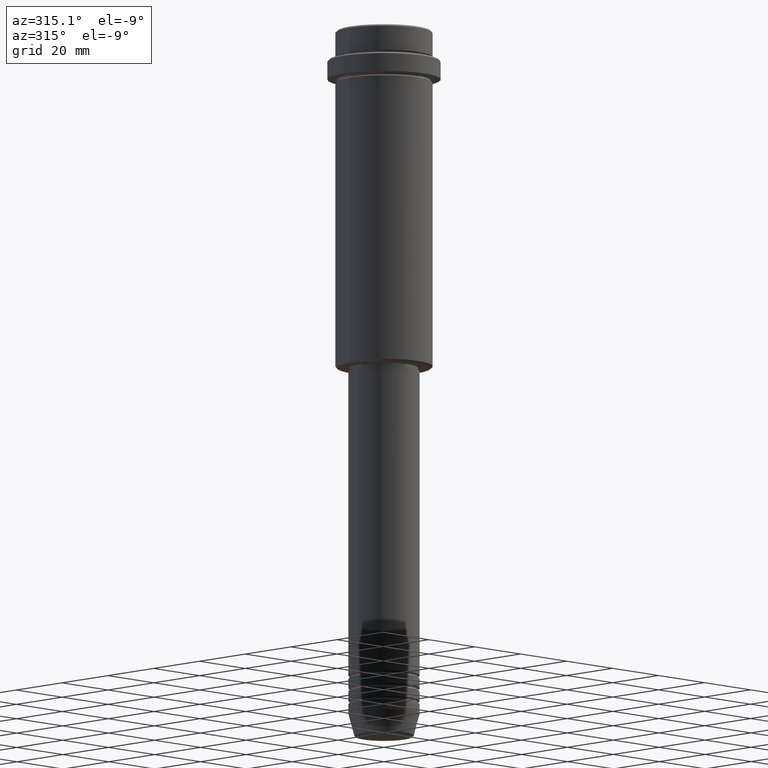
[diagram: clean part render]
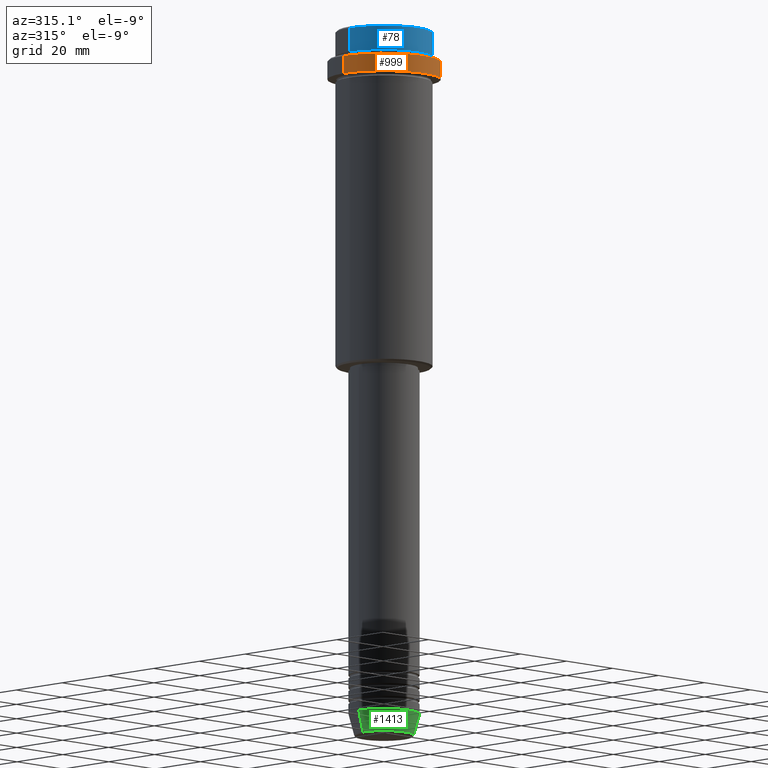
[diagram: same view with three faces highlighted in distinct colors, each labeled with its STEP entity id]
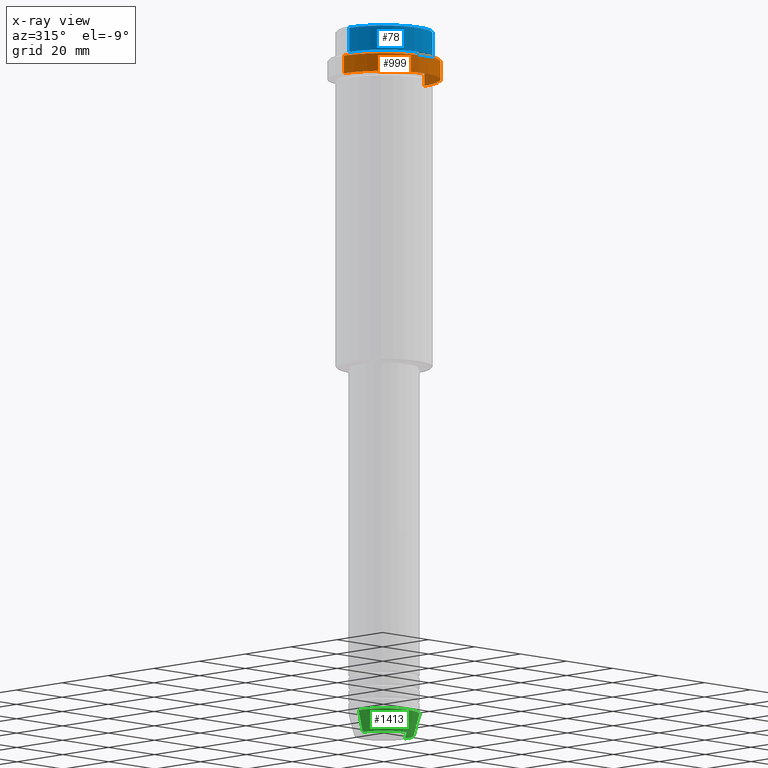
[diagram: x-ray of the same camera — body ghosted, the three highlighted faces saturated]
A machine part, auxiliary view with three faces highlighted in distinct colors.
The next image is the same camera in x-ray (body ghosted, the three faces saturated) — at least one of them is partly hidden behind the body in this view.
Their STEP definitions:

[orange] entity #999 — the highlighted cylindrical surface (partial cylindrical patch) has radius 17.5 mm, axis along (-0, -0, 1).
#37 = CIRCLE ( 'NONE', #843, 17.50000000000000000 ) ;
#68 = EDGE_CURVE ( 'NONE', #1298, #1323, #37, .T. ) ;
#102 = ORIENTED_EDGE ( 'NONE', *, *, #1174, .T. ) ;
#120 = CARTESIAN_POINT ( 'NONE',  ( -17.50000000000000000, 2.143131898507868248E-15, 0.000000000000000000 ) ) ;
#159 = ORIENTED_EDGE ( 'NONE', *, *, #528, .T. ) ;
#162 = CARTESIAN_POINT ( 'NONE',  ( 17.50000000000000000, 0.000000000000000000, 0.000000000000000000 ) ) ;
#215 = CARTESIAN_POINT ( 'NONE',  ( -17.50000000000000000, 2.143131898507868248E-15, -9.500000000000028422 ) ) ;
#227 = DIRECTION ( 'NONE',  ( 1.000000000000000000, 0.000000000000000000, 0.000000000000000000 ) ) ;
#259 = CARTESIAN_POINT ( 'NONE',  ( 0.000000000000000000, 0.000000000000000000, -15.00000000000000178 ) ) ;
#270 = DIRECTION ( 'NONE',  ( -0.000000000000000000, -0.000000000000000000, 1.000000000000000000 ) ) ;
#349 = DIRECTION ( 'NONE',  ( 1.000000000000000000, 0.000000000000000000, 0.000000000000000000 ) ) ;
#383 = VERTEX_POINT ( 'NONE', #841 ) ;
#439 = CYLINDRICAL_SURFACE ( 'NONE', #633, 17.50000000000000000 ) ;
#441 = DIRECTION ( 'NONE',  ( -0.000000000000000000, -0.000000000000000000, 1.000000000000000000 ) ) ;
#459 = EDGE_LOOP ( 'NONE', ( #556, #159, #102, #1191 ) ) ;
#471 = CARTESIAN_POINT ( 'NONE',  ( 0.000000000000000000, 0.000000000000000000, -9.500000000000028422 ) ) ;
#528 = EDGE_CURVE ( 'NONE', #383, #1180, #1386, .T. ) ;
#556 = ORIENTED_EDGE ( 'NONE', *, *, #942, .F. ) ;
#562 = DIRECTION ( 'NONE',  ( 0.000000000000000000, 0.000000000000000000, -1.000000000000000000 ) ) ;
#633 = AXIS2_PLACEMENT_3D ( 'NONE', #788, #976, #349 ) ;
#655 = VECTOR ( 'NONE', #270, 1000.000000000000000 ) ;
#656 = LINE ( 'NONE', #120, #711 ) ;
#674 = DIRECTION ( 'NONE',  ( -0.000000000000000000, -0.000000000000000000, 1.000000000000000000 ) ) ;
#711 = VECTOR ( 'NONE', #674, 1000.000000000000000 ) ;
#782 = DIRECTION ( 'NONE',  ( 1.000000000000000000, 0.000000000000000000, 0.000000000000000000 ) ) ;
#788 = CARTESIAN_POINT ( 'NONE',  ( 0.000000000000000000, 0.000000000000000000, 0.000000000000000000 ) ) ;
#841 = CARTESIAN_POINT ( 'NONE',  ( -17.50000000000000000, 2.143131898507868248E-15, -15.00000000000000178 ) ) ;
#843 = AXIS2_PLACEMENT_3D ( 'NONE', #471, #562, #782 ) ;
#942 = EDGE_CURVE ( 'NONE', #383, #1323, #656, .T. ) ;
#976 = DIRECTION ( 'NONE',  ( -0.000000000000000000, -0.000000000000000000, 1.000000000000000000 ) ) ;
#999 = ADVANCED_FACE ( 'NONE', ( #1324 ), #439, .T. ) ;
#1173 = CARTESIAN_POINT ( 'NONE',  ( 17.50000000000000000, 0.000000000000000000, -9.500000000000028422 ) ) ;
#1174 = EDGE_CURVE ( 'NONE', #1180, #1298, #1240, .T. ) ;
#1180 = VERTEX_POINT ( 'NONE', #1361 ) ;
#1191 = ORIENTED_EDGE ( 'NONE', *, *, #68, .T. ) ;
#1240 = LINE ( 'NONE', #162, #655 ) ;
#1249 = AXIS2_PLACEMENT_3D ( 'NONE', #259, #441, #227 ) ;
#1298 = VERTEX_POINT ( 'NONE', #1173 ) ;
#1323 = VERTEX_POINT ( 'NONE', #215 ) ;
#1324 = FACE_OUTER_BOUND ( 'NONE', #459, .T. ) ;
#1361 = CARTESIAN_POINT ( 'NONE',  ( 17.50000000000000000, 0.000000000000000000, -15.00000000000000178 ) ) ;
#1386 = CIRCLE ( 'NONE', #1249, 17.50000000000000000 ) ;

[blue] entity #78 — the highlighted cylindrical surface (partial cylindrical patch) has radius 15 mm, axis along (-0, -0, 1).
#11 = AXIS2_PLACEMENT_3D ( 'NONE', #194, #1177, #211 ) ;
#49 = DIRECTION ( 'NONE',  ( -0.000000000000000000, -0.000000000000000000, 1.000000000000000000 ) ) ;
#71 = CARTESIAN_POINT ( 'NONE',  ( 0.000000000000000000, 0.000000000000000000, -0.5000000000000108802 ) ) ;
#78 = ADVANCED_FACE ( 'NONE', ( #1196 ), #904, .T. ) ;
#181 = EDGE_CURVE ( 'NONE', #500, #815, #492, .T. ) ;
#194 = CARTESIAN_POINT ( 'NONE',  ( 0.000000000000000000, 0.000000000000000000, -7.999999999999998224 ) ) ;
#211 = DIRECTION ( 'NONE',  ( 1.000000000000000000, 0.000000000000000000, 0.000000000000000000 ) ) ;
#234 = VECTOR ( 'NONE', #805, 1000.000000000000000 ) ;
#285 = EDGE_CURVE ( 'NONE', #702, #678, #1025, .T. ) ;
#300 = CARTESIAN_POINT ( 'NONE',  ( -15.00000000000000000, 1.836970198721029589E-15, -0.5000000000000108802 ) ) ;
#348 = VECTOR ( 'NONE', #49, 1000.000000000000000 ) ;
#351 = DIRECTION ( 'NONE',  ( -0.000000000000000000, -0.000000000000000000, 1.000000000000000000 ) ) ;
#365 = DIRECTION ( 'NONE',  ( 1.000000000000000000, 0.000000000000000000, 0.000000000000000000 ) ) ;
#367 = ORIENTED_EDGE ( 'NONE', *, *, #757, .T. ) ;
#424 = EDGE_CURVE ( 'NONE', #500, #702, #1157, .T. ) ;
#464 = ORIENTED_EDGE ( 'NONE', *, *, #181, .F. ) ;
#492 = LINE ( 'NONE', #1343, #234 ) ;
#498 = CARTESIAN_POINT ( 'NONE',  ( 15.00000000000000000, 0.000000000000000000, 0.000000000000000000 ) ) ;
#500 = VERTEX_POINT ( 'NONE', #1410 ) ;
#527 = DIRECTION ( 'NONE',  ( 1.000000000000000000, 0.000000000000000000, 0.000000000000000000 ) ) ;
#592 = CARTESIAN_POINT ( 'NONE',  ( 15.00000000000000000, 0.000000000000000000, -7.999999999999998224 ) ) ;
#678 = VERTEX_POINT ( 'NONE', #716 ) ;
#689 = AXIS2_PLACEMENT_3D ( 'NONE', #1203, #351, #365 ) ;
#702 = VERTEX_POINT ( 'NONE', #592 ) ;
#716 = CARTESIAN_POINT ( 'NONE',  ( 15.00000000000000000, 0.000000000000000000, -0.5000000000000108802 ) ) ;
#756 = DIRECTION ( 'NONE',  ( 0.000000000000000000, 0.000000000000000000, -1.000000000000000000 ) ) ;
#757 = EDGE_CURVE ( 'NONE', #678, #815, #1296, .T. ) ;
#784 = ORIENTED_EDGE ( 'NONE', *, *, #285, .T. ) ;
#805 = DIRECTION ( 'NONE',  ( -0.000000000000000000, -0.000000000000000000, 1.000000000000000000 ) ) ;
#815 = VERTEX_POINT ( 'NONE', #300 ) ;
#830 = EDGE_LOOP ( 'NONE', ( #464, #920, #784, #367 ) ) ;
#904 = CYLINDRICAL_SURFACE ( 'NONE', #689, 15.00000000000000000 ) ;
#920 = ORIENTED_EDGE ( 'NONE', *, *, #424, .T. ) ;
#1025 = LINE ( 'NONE', #498, #348 ) ;
#1157 = CIRCLE ( 'NONE', #11, 15.00000000000000000 ) ;
#1177 = DIRECTION ( 'NONE',  ( -0.000000000000000000, -0.000000000000000000, 1.000000000000000000 ) ) ;
#1196 = FACE_OUTER_BOUND ( 'NONE', #830, .T. ) ;
#1203 = CARTESIAN_POINT ( 'NONE',  ( 0.000000000000000000, 0.000000000000000000, 0.000000000000000000 ) ) ;
#1251 = AXIS2_PLACEMENT_3D ( 'NONE', #71, #756, #527 ) ;
#1296 = CIRCLE ( 'NONE', #1251, 15.00000000000000000 ) ;
#1343 = CARTESIAN_POINT ( 'NONE',  ( -15.00000000000000000, 1.836970198721029589E-15, 0.000000000000000000 ) ) ;
#1410 = CARTESIAN_POINT ( 'NONE',  ( -15.00000000000000000, 1.836970198721029589E-15, -7.999999999999998224 ) ) ;

[green] entity #1413 — the highlighted conical surface has half-angle 15 deg.
#40 = EDGE_CURVE ( 'NONE', #255, #1308, #998, .T. ) ;
#44 = CARTESIAN_POINT ( 'NONE',  ( 11.00000000000000000, 0.000000000000000000, -213.0000000000000284 ) ) ;
#191 = EDGE_CURVE ( 'NONE', #361, #196, #612, .T. ) ;
#196 = VERTEX_POINT ( 'NONE', #44 ) ;
#247 = CARTESIAN_POINT ( 'NONE',  ( 0.000000000000000000, 0.000000000000000000, -219.6294095225512706 ) ) ;
#253 = DIRECTION ( 'NONE',  ( -0.000000000000000000, -0.000000000000000000, 1.000000000000000000 ) ) ;
#255 = VERTEX_POINT ( 'NONE', #1033 ) ;
#267 = AXIS2_PLACEMENT_3D ( 'NONE', #247, #806, #1228 ) ;
#291 = DIRECTION ( 'NONE',  ( -0.000000000000000000, -0.000000000000000000, 1.000000000000000000 ) ) ;
#334 = CONICAL_SURFACE ( 'NONE', #1098, 11.00000000000000000, 0.2617993877991491303 ) ;
#361 = VERTEX_POINT ( 'NONE', #1399 ) ;
#381 = AXIS2_PLACEMENT_3D ( 'NONE', #1073, #291, #1123 ) ;
#449 = CARTESIAN_POINT ( 'NONE',  ( -11.00000000000000000, 1.347111479062088405E-15, -213.0000000000000284 ) ) ;
#531 = CARTESIAN_POINT ( 'NONE',  ( -11.00000000000000000, 1.347111479062088405E-15, -213.0000000000000284 ) ) ;
#572 = FACE_OUTER_BOUND ( 'NONE', #972, .T. ) ;
#612 = LINE ( 'NONE', #710, #624 ) ;
#624 = VECTOR ( 'NONE', #1260, 1000.000000000000114 ) ;
#710 = CARTESIAN_POINT ( 'NONE',  ( 11.00000000000000000, 0.000000000000000000, -213.0000000000000284 ) ) ;
#806 = DIRECTION ( 'NONE',  ( -0.000000000000000000, -0.000000000000000000, 1.000000000000000000 ) ) ;
#897 = CARTESIAN_POINT ( 'NONE',  ( 0.000000000000000000, 0.000000000000000000, -213.0000000000000284 ) ) ;
#899 = ORIENTED_EDGE ( 'NONE', *, *, #40, .F. ) ;
#972 = EDGE_LOOP ( 'NONE', ( #899, #979, #988, #1390 ) ) ;
#979 = ORIENTED_EDGE ( 'NONE', *, *, #1387, .T. ) ;
#988 = ORIENTED_EDGE ( 'NONE', *, *, #191, .T. ) ;
#998 = LINE ( 'NONE', #449, #1112 ) ;
#1033 = CARTESIAN_POINT ( 'NONE',  ( -9.223655072137201927, 1.238341722557647793E-15, -219.6294095225512706 ) ) ;
#1073 = CARTESIAN_POINT ( 'NONE',  ( 0.000000000000000000, 0.000000000000000000, -213.0000000000000284 ) ) ;
#1098 = AXIS2_PLACEMENT_3D ( 'NONE', #897, #253, #1130 ) ;
#1112 = VECTOR ( 'NONE', #1114, 1000.000000000000114 ) ;
#1114 = DIRECTION ( 'NONE',  ( -0.2588190451025205174, 3.169619151431761243E-17, 0.9659258262890684232 ) ) ;
#1123 = DIRECTION ( 'NONE',  ( 1.000000000000000000, 0.000000000000000000, 0.000000000000000000 ) ) ;
#1130 = DIRECTION ( 'NONE',  ( 1.000000000000000000, 0.000000000000000000, 0.000000000000000000 ) ) ;
#1148 = CIRCLE ( 'NONE', #381, 11.00000000000000000 ) ;
#1228 = DIRECTION ( 'NONE',  ( 1.000000000000000000, 0.000000000000000000, 0.000000000000000000 ) ) ;
#1260 = DIRECTION ( 'NONE',  ( 0.2588190451025205174, 0.000000000000000000, 0.9659258262890684232 ) ) ;
#1264 = CIRCLE ( 'NONE', #267, 9.223655072137201927 ) ;
#1308 = VERTEX_POINT ( 'NONE', #531 ) ;
#1331 = EDGE_CURVE ( 'NONE', #1308, #196, #1148, .T. ) ;
#1387 = EDGE_CURVE ( 'NONE', #255, #361, #1264, .T. ) ;
#1390 = ORIENTED_EDGE ( 'NONE', *, *, #1331, .F. ) ;
#1399 = CARTESIAN_POINT ( 'NONE',  ( 9.223655072137201927, 0.000000000000000000, -219.6294095225512706 ) ) ;
#1413 = ADVANCED_FACE ( 'NONE', ( #572 ), #334, .T. ) ;